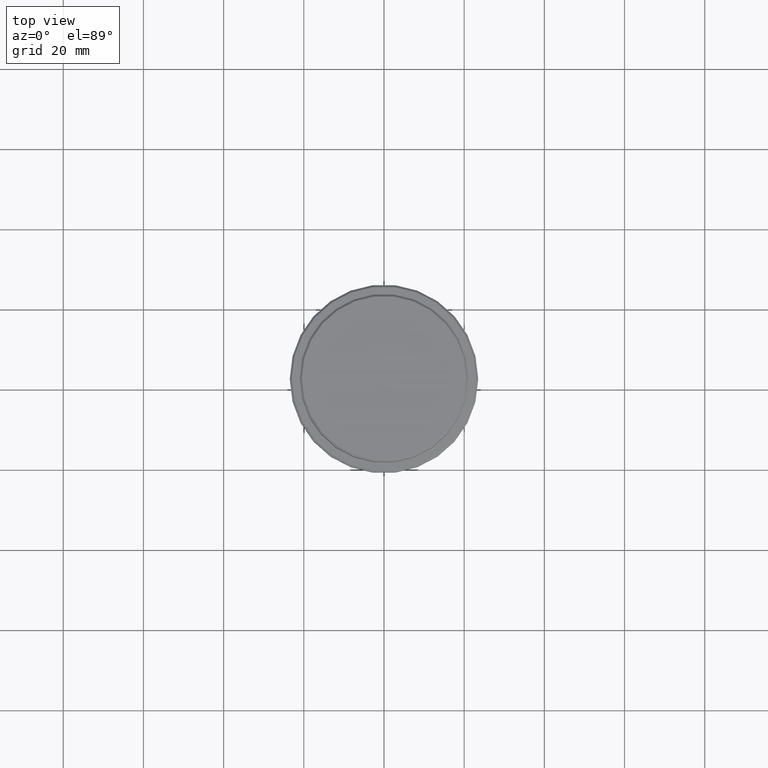
[diagram: clean part render]
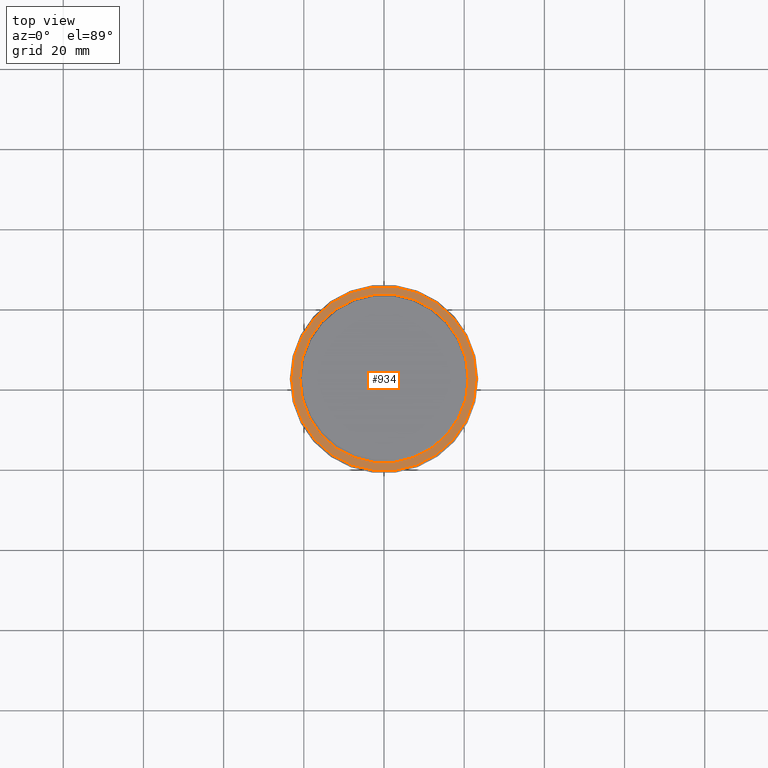
[diagram: same view with one face highlighted and labeled with its STEP entity id]
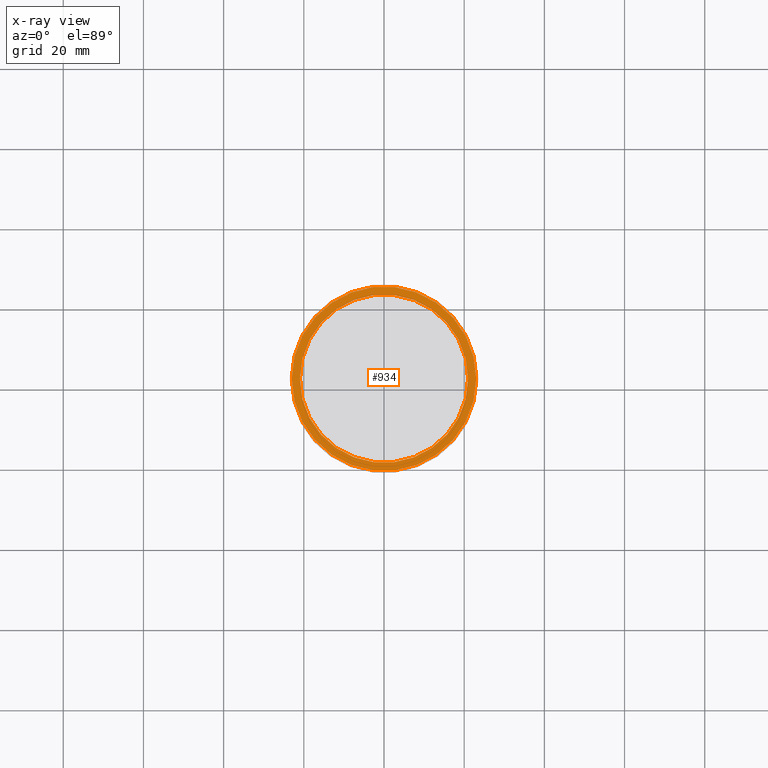
[diagram: x-ray of the same camera — body ghosted, the highlighted face saturated]
A machine part, top view. The second image highlights one B-rep face of the part: STEP entity #934.
The next image is the same camera in x-ray: the body ghosted, the highlighted face saturated — about 0% of this face is hidden behind the body in this view.
In plain terms, the highlighted planar face has unit normal (0, -0, 1).
Its self-contained STEP definition (entity closure, byte-faithful):
#86 = CARTESIAN_POINT ( 'NONE',  ( 0.000000000000000000, 20.49999999999999645, -9.000000000000000000 ) ) ;
#92 = EDGE_CURVE ( 'NONE', #1005, #1119, #1269, .T. ) ;
#131 = ORIENTED_EDGE ( 'NONE', *, *, #288, .T. ) ;
#202 = EDGE_LOOP ( 'NONE', ( #1011, #1080 ) ) ;
#240 = DIRECTION ( 'NONE',  ( 1.000000000000000000, 0.000000000000000000, 0.000000000000000000 ) ) ;
#288 = EDGE_CURVE ( 'NONE', #523, #665, #1041, .T. ) ;
#312 = DIRECTION ( 'NONE',  ( 0.000000000000000000, 0.000000000000000000, -1.000000000000000000 ) ) ;
#333 = CIRCLE ( 'NONE', #546, 20.99999999999999289 ) ;
#376 = CARTESIAN_POINT ( 'NONE',  ( 0.000000000000000000, 0.000000000000000000, -9.000000000000000000 ) ) ;
#458 = EDGE_LOOP ( 'NONE', ( #1287, #131 ) ) ;
#471 = CARTESIAN_POINT ( 'NONE',  ( -22.99999999999996803, 0.000000000000000000, -9.000000000000000000 ) ) ;
#488 = CARTESIAN_POINT ( 'NONE',  ( -20.99999999999999289, 2.571758278209440872E-15, -9.000000000000000000 ) ) ;
#511 = EDGE_CURVE ( 'NONE', #1119, #1005, #333, .T. ) ;
#523 = VERTEX_POINT ( 'NONE', #883 ) ;
#538 = FACE_BOUND ( 'NONE', #202, .T. ) ;
#545 = FACE_OUTER_BOUND ( 'NONE', #458, .T. ) ;
#546 = AXIS2_PLACEMENT_3D ( 'NONE', #879, #312, #655 ) ;
#582 = DIRECTION ( 'NONE',  ( 1.000000000000000000, 0.000000000000000000, 0.000000000000000000 ) ) ;
#642 = DIRECTION ( 'NONE',  ( 1.000000000000000000, 0.000000000000000000, 0.000000000000000000 ) ) ;
#647 = CIRCLE ( 'NONE', #1001, 22.99999999999996803 ) ;
#655 = DIRECTION ( 'NONE',  ( 1.000000000000000000, 0.000000000000000000, 0.000000000000000000 ) ) ;
#665 = VERTEX_POINT ( 'NONE', #471 ) ;
#754 = DIRECTION ( 'NONE',  ( 0.000000000000000000, 0.000000000000000000, -1.000000000000000000 ) ) ;
#770 = PLANE ( 'NONE',  #1275 ) ;
#852 = CARTESIAN_POINT ( 'NONE',  ( 0.000000000000000000, 0.000000000000000000, -9.000000000000000000 ) ) ;
#879 = CARTESIAN_POINT ( 'NONE',  ( 0.000000000000000000, 0.000000000000000000, -9.000000000000000000 ) ) ;
#883 = CARTESIAN_POINT ( 'NONE',  ( 22.99999999999996803, 2.847303808017594561E-15, -9.000000000000000000 ) ) ;
#901 = DIRECTION ( 'NONE',  ( -0.000000000000000000, -0.000000000000000000, 1.000000000000000000 ) ) ;
#934 = ADVANCED_FACE ( 'NONE', ( #545, #538 ), #770, .T. ) ;
#939 = DIRECTION ( 'NONE',  ( -0.000000000000000000, -0.000000000000000000, 1.000000000000000000 ) ) ;
#965 = DIRECTION ( 'NONE',  ( 0.000000000000000000, -0.000000000000000000, 1.000000000000000000 ) ) ;
#970 = DIRECTION ( 'NONE',  ( 1.000000000000000000, 0.000000000000000000, 0.000000000000000000 ) ) ;
#1001 = AXIS2_PLACEMENT_3D ( 'NONE', #1351, #939, #582 ) ;
#1005 = VERTEX_POINT ( 'NONE', #1175 ) ;
#1011 = ORIENTED_EDGE ( 'NONE', *, *, #92, .T. ) ;
#1041 = CIRCLE ( 'NONE', #1405, 22.99999999999996803 ) ;
#1080 = ORIENTED_EDGE ( 'NONE', *, *, #511, .T. ) ;
#1119 = VERTEX_POINT ( 'NONE', #488 ) ;
#1175 = CARTESIAN_POINT ( 'NONE',  ( 20.99999999999999289, 0.000000000000000000, -9.000000000000000000 ) ) ;
#1176 = AXIS2_PLACEMENT_3D ( 'NONE', #852, #754, #642 ) ;
#1183 = EDGE_CURVE ( 'NONE', #665, #523, #647, .T. ) ;
#1269 = CIRCLE ( 'NONE', #1176, 20.99999999999999289 ) ;
#1275 = AXIS2_PLACEMENT_3D ( 'NONE', #86, #965, #970 ) ;
#1287 = ORIENTED_EDGE ( 'NONE', *, *, #1183, .T. ) ;
#1351 = CARTESIAN_POINT ( 'NONE',  ( 0.000000000000000000, 0.000000000000000000, -9.000000000000000000 ) ) ;
#1405 = AXIS2_PLACEMENT_3D ( 'NONE', #376, #901, #240 ) ;